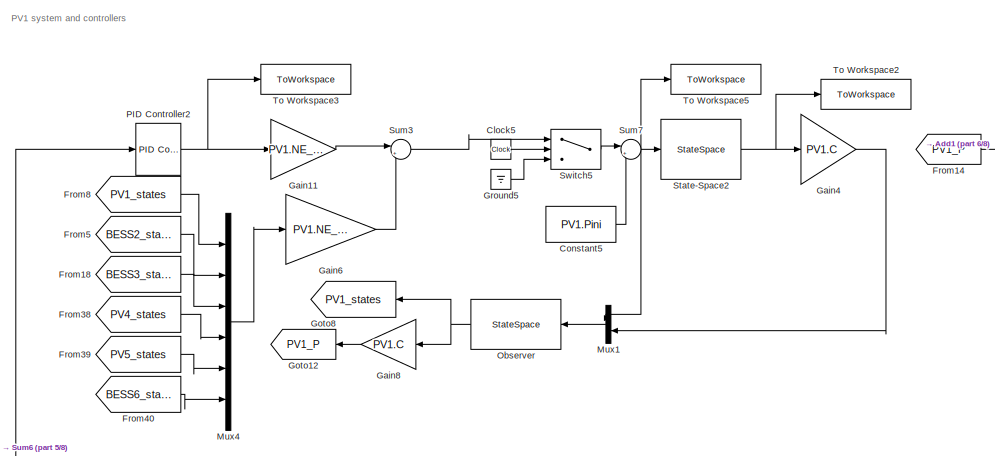
[diagram: root canvas - part 1/8, top center region]
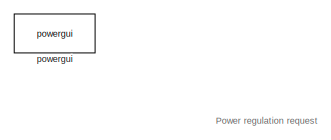
[diagram: root canvas - part 2/8, top left region]
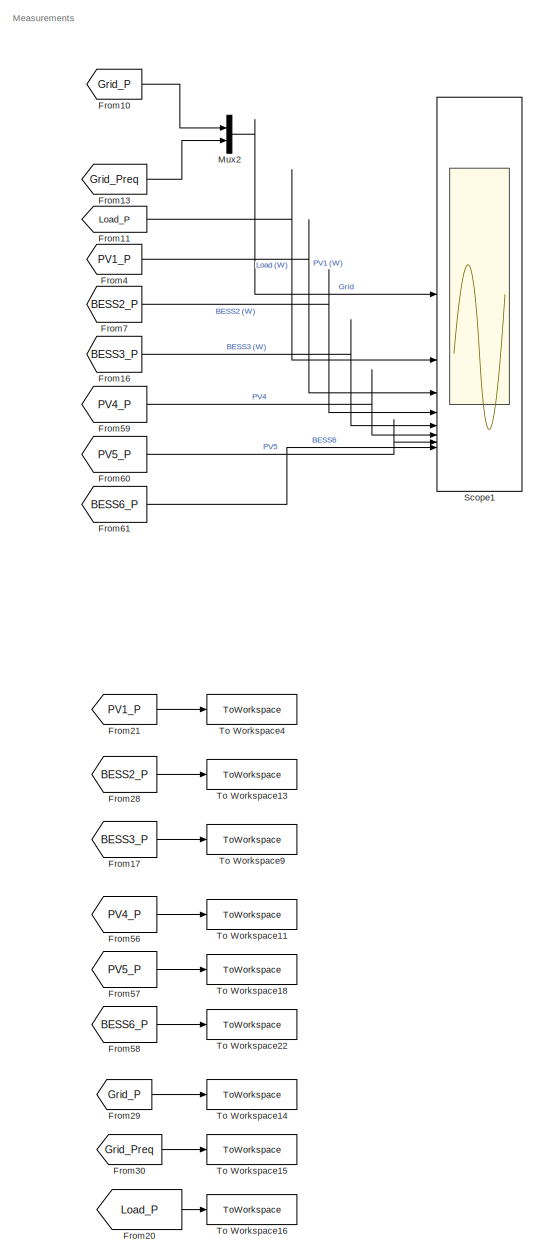
[diagram: root canvas - part 3/8, middle right region]
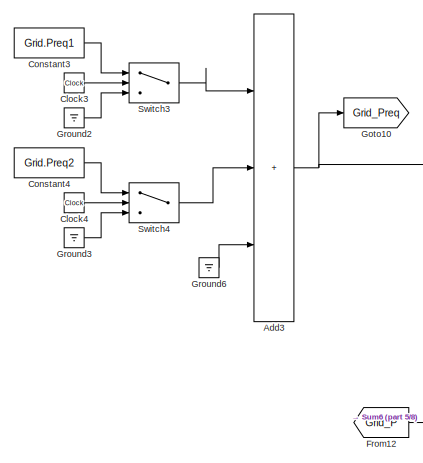
[diagram: root canvas - part 4/8, top left region]
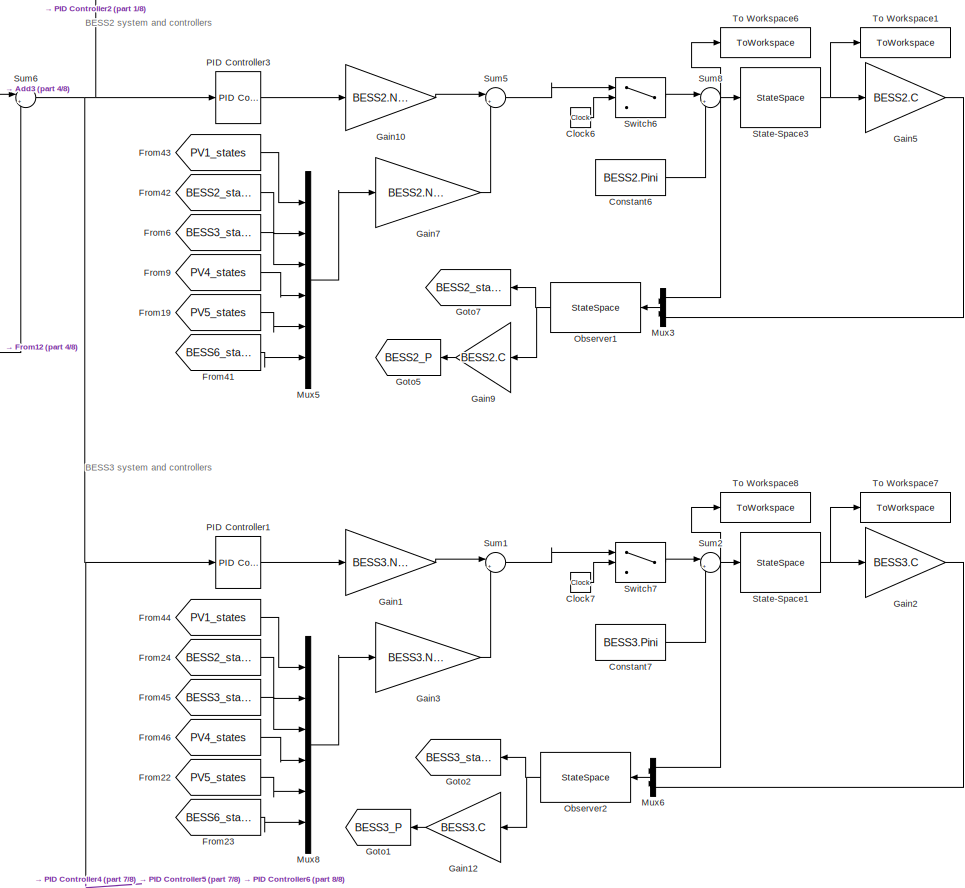
[diagram: root canvas - part 5/8, top left region]
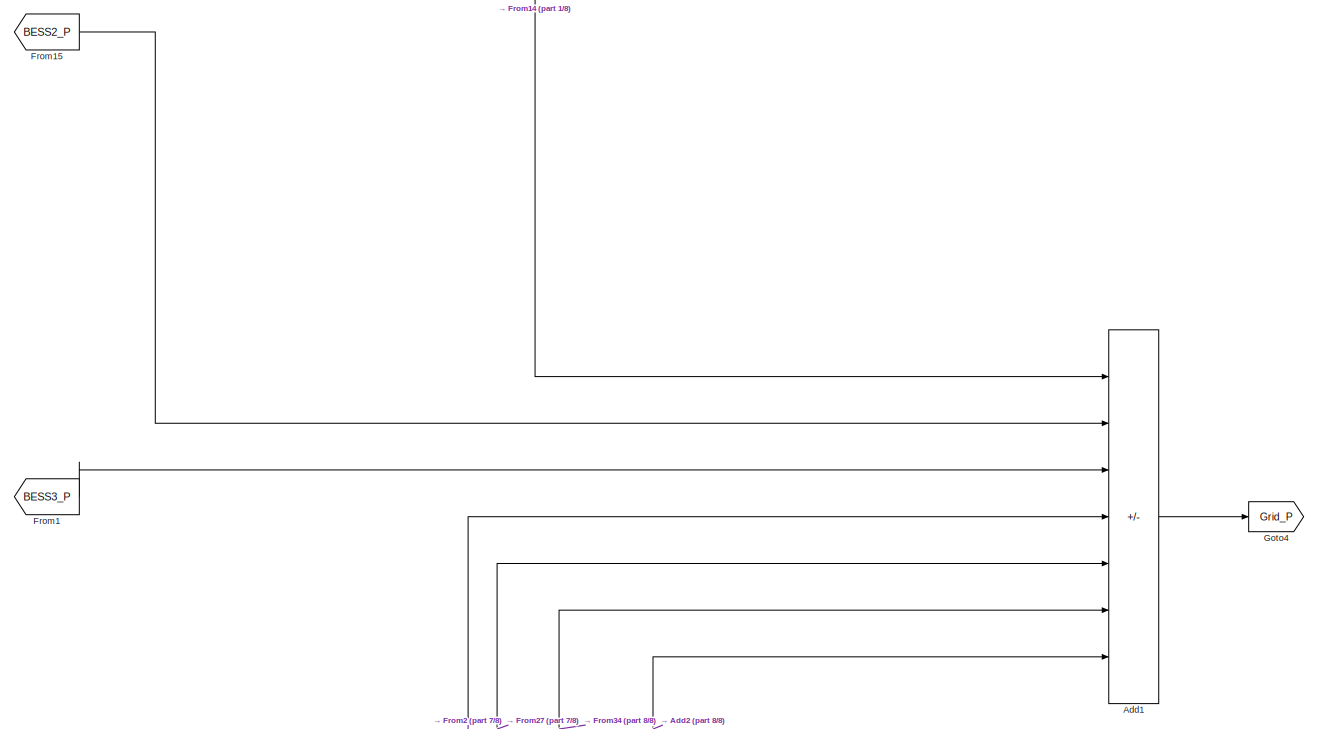
[diagram: root canvas - part 6/8, top center region]
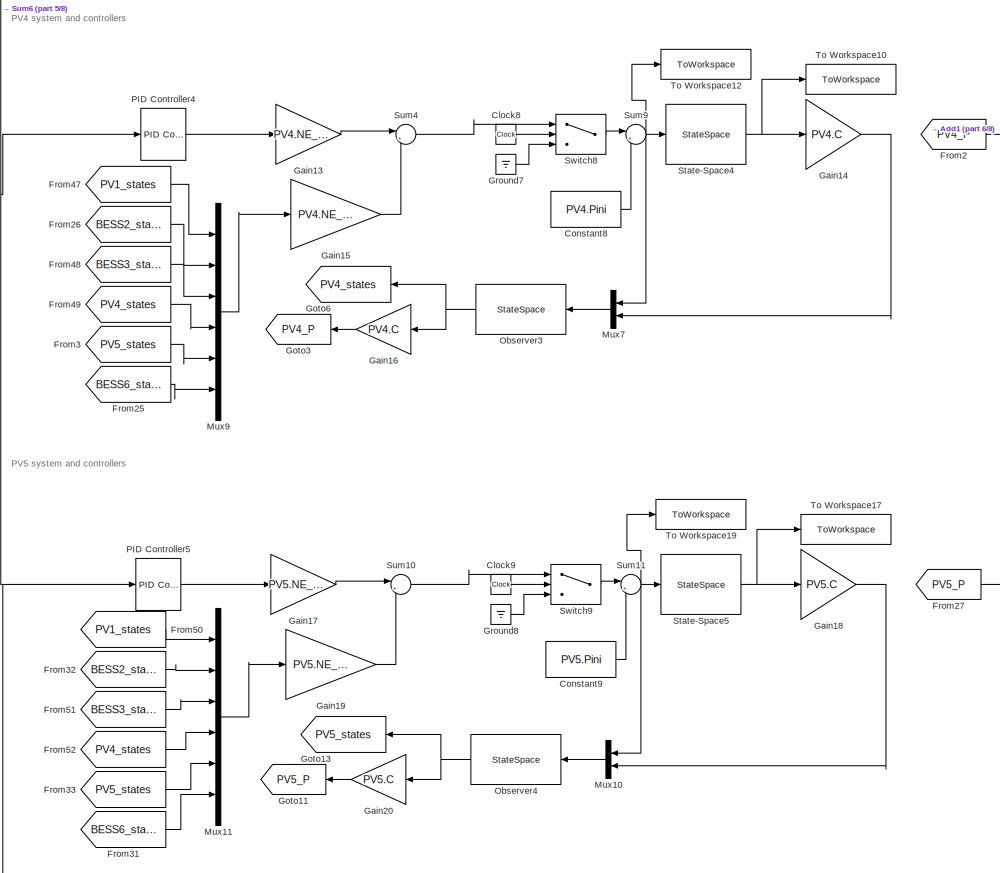
[diagram: root canvas - part 7/8, central region]
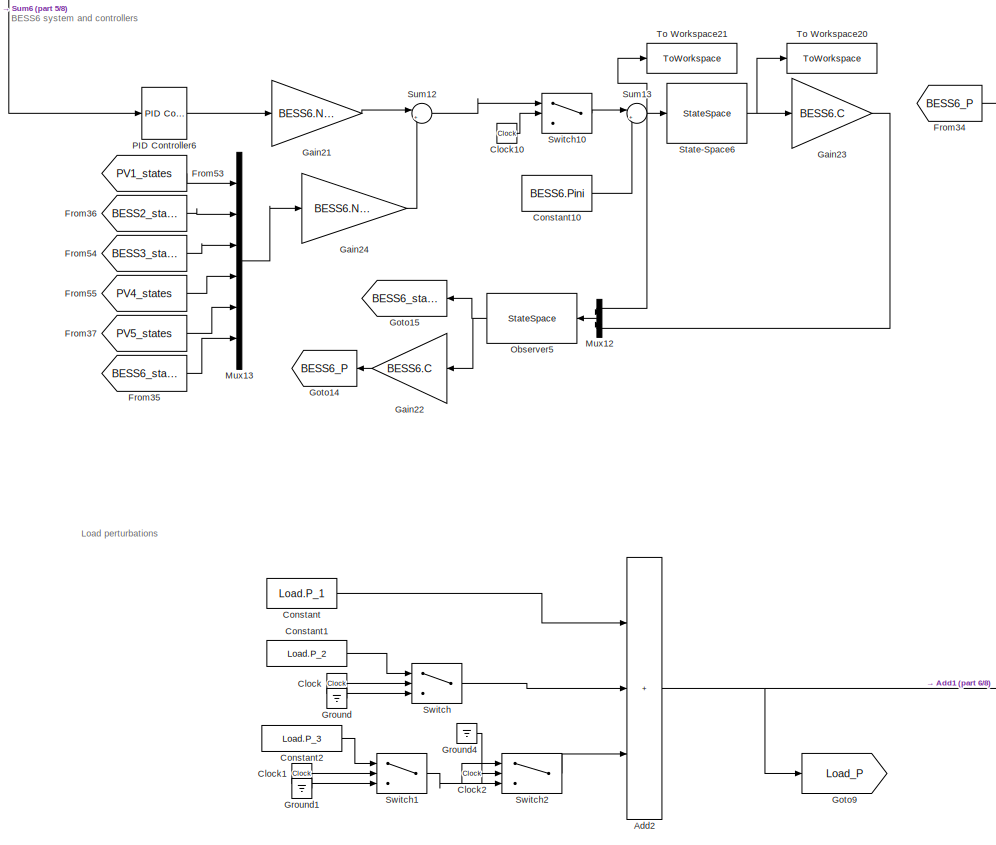
[diagram: root canvas - part 8/8, bottom center region]
MODEL slx_c86b8dcd401f
KIND model
CONFIG AbsTol = auto
CONFIG EnableMultiTasking = off
CONFIG FixedStep = auto
CONFIG MaxStep = auto
CONFIG MinStep = auto
CONFIG RelTol = 1e-3
CONFIG SampleTimeConstraint = Unconstrained
CONFIG SolverName = VariableStepAuto
CONFIG StartTime = 0.0
CONFIG StopTime = 6
BLOCK [Sum] Add1
  IconShape = rectangular
  Inputs = ++++++-
BLOCK [Sum] Add2
  IconShape = rectangular
  Inputs = +++
BLOCK [Sum] Add3
  IconShape = rectangular
  Inputs = +++
BLOCK [Clock] Clock
BLOCK [Clock] Clock1
BLOCK [Clock] Clock10
BLOCK [Clock] Clock2
BLOCK [Clock] Clock3
BLOCK [Clock] Clock4
BLOCK [Clock] Clock5
BLOCK [Clock] Clock6
BLOCK [Clock] Clock7
BLOCK [Clock] Clock8
BLOCK [Clock] Clock9
BLOCK [Constant] Constant
  Value = Load.P_1
BLOCK [Constant] Constant1
  Value = Load.P_2
BLOCK [Constant] Constant10
  Value = BESS6.Pini
BLOCK [Constant] Constant2
  Value = Load.P_3
BLOCK [Constant] Constant3
  Value = Grid.Preq1
BLOCK [Constant] Constant4
  Value = Grid.Preq2
BLOCK [Constant] Constant5
  Value = PV1.Pini
BLOCK [Constant] Constant6
  Value = BESS2.Pini
BLOCK [Constant] Constant7
  Value = BESS3.Pini
BLOCK [Constant] Constant8
  Value = PV4.Pini
BLOCK [Constant] Constant9
  Value = PV5.Pini
BLOCK [From] From1
  GotoTag = BESS3_P
BLOCK [From] From10
  GotoTag = Grid_P
BLOCK [From] From11
  GotoTag = Load_P
BLOCK [From] From12
  GotoTag = Grid_P
BLOCK [From] From13
  GotoTag = Grid_Preq
BLOCK [From] From14
  GotoTag = PV1_P
BLOCK [From] From15
  GotoTag = BESS2_P
BLOCK [From] From16
  GotoTag = BESS3_P
BLOCK [From] From17
  GotoTag = BESS3_P
BLOCK [From] From18
  GotoTag = BESS3_states
BLOCK [From] From19
  GotoTag = PV5_states
BLOCK [From] From2
  GotoTag = PV4_P
BLOCK [From] From20
  GotoTag = Load_P
BLOCK [From] From21
  GotoTag = PV1_P
BLOCK [From] From22
  GotoTag = PV5_states
BLOCK [From] From23
  GotoTag = BESS6_states
BLOCK [From] From24
  GotoTag = BESS2_states
BLOCK [From] From25
  GotoTag = BESS6_states
BLOCK [From] From26
  GotoTag = BESS2_states
BLOCK [From] From27
  GotoTag = PV5_P
BLOCK [From] From28
  GotoTag = BESS2_P
BLOCK [From] From29
  GotoTag = Grid_P
BLOCK [From] From3
  GotoTag = PV5_states
BLOCK [From] From30
  GotoTag = Grid_Preq
BLOCK [From] From31
  GotoTag = BESS6_states
BLOCK [From] From32
  GotoTag = BESS2_states
BLOCK [From] From33
  GotoTag = PV5_states
BLOCK [From] From34
  GotoTag = BESS6_P
BLOCK [From] From35
  GotoTag = BESS6_states
BLOCK [From] From36
  GotoTag = BESS2_states
BLOCK [From] From37
  GotoTag = PV5_states
BLOCK [From] From38
  GotoTag = PV4_states
BLOCK [From] From39
  GotoTag = PV5_states
BLOCK [From] From4
  GotoTag = PV1_P
BLOCK [From] From40
  GotoTag = BESS6_states
BLOCK [From] From41
  GotoTag = BESS6_states
BLOCK [From] From42
  GotoTag = BESS2_states
BLOCK [From] From43
  GotoTag = PV1_states
BLOCK [From] From44
  GotoTag = PV1_states
BLOCK [From] From45
  GotoTag = BESS3_states
BLOCK [From] From46
  GotoTag = PV4_states
BLOCK [From] From47
  GotoTag = PV1_states
BLOCK [From] From48
  GotoTag = BESS3_states
BLOCK [From] From49
  GotoTag = PV4_states
BLOCK [From] From5
  GotoTag = BESS2_states
BLOCK [From] From50
  GotoTag = PV1_states
BLOCK [From] From51
  GotoTag = BESS3_states
BLOCK [From] From52
  GotoTag = PV4_states
BLOCK [From] From53
  GotoTag = PV1_states
BLOCK [From] From54
  GotoTag = BESS3_states
BLOCK [From] From55
  GotoTag = PV4_states
BLOCK [From] From56
  GotoTag = PV4_P
BLOCK [From] From57
  GotoTag = PV5_P
BLOCK [From] From58
  GotoTag = BESS6_P
BLOCK [From] From59
  GotoTag = PV4_P
BLOCK [From] From6
  GotoTag = BESS3_states
BLOCK [From] From60
  GotoTag = PV5_P
BLOCK [From] From61
  GotoTag = BESS6_P
BLOCK [From] From7
  GotoTag = BESS2_P
BLOCK [From] From8
  GotoTag = PV1_states
BLOCK [From] From9
  GotoTag = PV4_states
BLOCK [Gain] Gain1
  Gain = BESS3.NE_ki
BLOCK [Gain] Gain10
  Gain = BESS2.NE_ki
BLOCK [Gain] Gain11
  Gain = PV1.NE_ki
BLOCK [Gain] Gain12
  Gain = BESS3.C
  Multiplication = Matrix(K*u)
BLOCK [Gain] Gain13
  Gain = PV4.NE_ki
BLOCK [Gain] Gain14
  Gain = PV4.C
  Multiplication = Matrix(K*u)
BLOCK [Gain] Gain15
  Gain = PV4.NE_kp
  Multiplication = Matrix(K*u)
BLOCK [Gain] Gain16
  Gain = PV4.C
  Multiplication = Matrix(K*u)
BLOCK [Gain] Gain17
  Gain = PV5.NE_ki
BLOCK [Gain] Gain18
  Gain = PV5.C
  Multiplication = Matrix(K*u)
BLOCK [Gain] Gain19
  Gain = PV5.NE_kp
  Multiplication = Matrix(K*u)
BLOCK [Gain] Gain2
  Gain = BESS3.C
  Multiplication = Matrix(K*u)
BLOCK [Gain] Gain20
  Gain = PV5.C
  Multiplication = Matrix(K*u)
BLOCK [Gain] Gain21
  Gain = BESS6.NE_ki
BLOCK [Gain] Gain22
  Gain = BESS6.C
  Multiplication = Matrix(K*u)
BLOCK [Gain] Gain23
  Gain = BESS6.C
  Multiplication = Matrix(K*u)
BLOCK [Gain] Gain24
  Gain = BESS6.NE_kp
  Multiplication = Matrix(K*u)
BLOCK [Gain] Gain3
  Gain = BESS3.NE_kp
  Multiplication = Matrix(K*u)
BLOCK [Gain] Gain4
  Gain = PV1.C
  Multiplication = Matrix(K*u)
BLOCK [Gain] Gain5
  Gain = BESS2.C
  Multiplication = Matrix(K*u)
BLOCK [Gain] Gain6
  Gain = PV1.NE_kp
  Multiplication = Matrix(K*u)
BLOCK [Gain] Gain7
  Gain = BESS2.NE_kp
  Multiplication = Matrix(K*u)
BLOCK [Gain] Gain8
  Gain = PV1.C
  Multiplication = Matrix(K*u)
BLOCK [Gain] Gain9
  Gain = BESS2.C
  Multiplication = Matrix(K*u)
BLOCK [Goto] Goto1
  GotoTag = BESS3_P
BLOCK [Goto] Goto10
  GotoTag = Grid_Preq
BLOCK [Goto] Goto11
  GotoTag = PV5_P
BLOCK [Goto] Goto12
  GotoTag = PV1_P
BLOCK [Goto] Goto13
  GotoTag = PV5_states
BLOCK [Goto] Goto14
  GotoTag = BESS6_P
BLOCK [Goto] Goto15
  GotoTag = BESS6_states
BLOCK [Goto] Goto2
  GotoTag = BESS3_states
BLOCK [Goto] Goto3
  GotoTag = PV4_P
BLOCK [Goto] Goto4
  GotoTag = Grid_P
BLOCK [Goto] Goto5
  GotoTag = BESS2_P
BLOCK [Goto] Goto6
  GotoTag = PV4_states
BLOCK [Goto] Goto7
  GotoTag = BESS2_states
BLOCK [Goto] Goto8
  GotoTag = PV1_states
BLOCK [Goto] Goto9
  GotoTag = Load_P
BLOCK [Ground] Ground
BLOCK [Ground] Ground1
BLOCK [Ground] Ground2
BLOCK [Ground] Ground3
BLOCK [Ground] Ground4
BLOCK [Ground] Ground5
BLOCK [Ground] Ground6
BLOCK [Ground] Ground7
BLOCK [Ground] Ground8
BLOCK [Mux] Mux1
  DisplayOption = bar
  Inputs = 2
BLOCK [Mux] Mux10
  DisplayOption = bar
  Inputs = 2
BLOCK [Mux] Mux11
  DisplayOption = bar
  Inputs = 6
BLOCK [Mux] Mux12
  DisplayOption = bar
  Inputs = 2
BLOCK [Mux] Mux13
  DisplayOption = bar
  Inputs = 6
BLOCK [Mux] Mux2
  DisplayOption = bar
  Inputs = 2
BLOCK [Mux] Mux3
  DisplayOption = bar
  Inputs = 2
BLOCK [Mux] Mux4
  DisplayOption = bar
  Inputs = 6
BLOCK [Mux] Mux5
  DisplayOption = bar
  Inputs = 6
BLOCK [Mux] Mux6
  DisplayOption = bar
  Inputs = 2
BLOCK [Mux] Mux7
  DisplayOption = bar
  Inputs = 2
BLOCK [Mux] Mux8
  DisplayOption = bar
  Inputs = 6
BLOCK [Mux] Mux9
  DisplayOption = bar
  Inputs = 6
BLOCK [StateSpace] Observer
  A = PV1.kf_As
  B = PV1.kf_Bs
  C = PV1.kf_Cs
  D = PV1.kf_Ds
  InitialCondition = 0
BLOCK [StateSpace] Observer1
  A = BESS2.kf_As
  B = BESS2.kf_Bs
  C = BESS2.kf_Cs
  D = BESS2.kf_Ds
  InitialCondition = 0
BLOCK [StateSpace] Observer2
  A = BESS3.kf_As
  B = BESS3.kf_Bs
  C = BESS3.kf_Cs
  D = BESS3.kf_Ds
  InitialCondition = 0
BLOCK [StateSpace] Observer3
  A = PV4.kf_As
  B = PV4.kf_Bs
  C = PV4.kf_Cs
  D = PV4.kf_Ds
  InitialCondition = 0
BLOCK [StateSpace] Observer4
  A = PV5.kf_As
  B = PV5.kf_Bs
  C = PV5.kf_Cs
  D = PV5.kf_Ds
  InitialCondition = 0
BLOCK [StateSpace] Observer5
  A = BESS6.kf_As
  B = BESS6.kf_Bs
  C = BESS6.kf_Cs
  D = BESS6.kf_Ds
  InitialCondition = 0
BLOCK [Reference] PID Controller1  REF=slpidlib/PID Controller
  LibrarySourceBlock = simulink/Continuous/PID Controller
  SourceBlock = slpidlib/PID Controller
  SourceType = PID 1dof
BLOCK [Reference] PID Controller2  REF=slpidlib/PID Controller
  LibrarySourceBlock = simulink/Continuous/PID Controller
  SourceBlock = slpidlib/PID Controller
  SourceType = PID 1dof
BLOCK [Reference] PID Controller3  REF=slpidlib/PID Controller
  LibrarySourceBlock = simulink/Continuous/PID Controller
  SourceBlock = slpidlib/PID Controller
  SourceType = PID 1dof
BLOCK [Reference] PID Controller4  REF=slpidlib/PID Controller
  LibrarySourceBlock = simulink/Continuous/PID Controller
  SourceBlock = slpidlib/PID Controller
  SourceType = PID 1dof
BLOCK [Reference] PID Controller5  REF=slpidlib/PID Controller
  LibrarySourceBlock = simulink/Continuous/PID Controller
  SourceBlock = slpidlib/PID Controller
  SourceType = PID 1dof
BLOCK [Reference] PID Controller6  REF=slpidlib/PID Controller
  LibrarySourceBlock = simulink/Continuous/PID Controller
  SourceBlock = slpidlib/PID Controller
  SourceType = PID 1dof
BLOCK [Scope] Scope1
  Floating = off
  NumInputPorts = 8
  ScopeSpecificationString = Simulink.scopes.TimeScopeBlockCfg('CurrentConfiguration', extmgr.ConfigurationSet(extmgr.Configuration('Core','General UI',true,'FigureColor',[1 1 1]),extmgr.Configuration('Core','Source UI',true),extmgr.Configuration('Sources','WiredSimulink',true,'DataLoggingVariableName','ScopeData1'),extmgr.Configuration('Visuals','Time Domain',true,'SerializedDisplays',{struct('MinYLimReal','-9250003.42325','...<+8378ch>
BLOCK [StateSpace] State-Space1
  A = BESS3.A
  B = BESS3.B
  C = eye(2,2)
  D = zeros(2,1)
  InitialCondition = 0
BLOCK [StateSpace] State-Space2
  A = PV1.A
  B = PV1.B
  C = eye(2,2)
  D = zeros(2,1)
  InitialCondition = 0
BLOCK [StateSpace] State-Space3
  A = BESS2.A
  B = BESS2.B
  C = eye(2,2)
  D = zeros(2,1)
  InitialCondition = 0
BLOCK [StateSpace] State-Space4
  A = PV4.A
  B = PV4.B
  C = eye(2,2)
  D = zeros(2,1)
  InitialCondition = 0
BLOCK [StateSpace] State-Space5
  A = PV5.A
  B = PV5.B
  C = eye(2,2)
  D = zeros(2,1)
  InitialCondition = 0
BLOCK [StateSpace] State-Space6
  A = BESS6.A
  B = BESS6.B
  C = eye(2,2)
  D = zeros(2,1)
  InitialCondition = 0
BLOCK [Sum] Sum1
  Inputs = |++
BLOCK [Sum] Sum10
  Inputs = |++
BLOCK [Sum] Sum11
  Inputs = |++
BLOCK [Sum] Sum12
  Inputs = |++
BLOCK [Sum] Sum13
  Inputs = |++
BLOCK [Sum] Sum2
  Inputs = |++
BLOCK [Sum] Sum3
  Inputs = |++
BLOCK [Sum] Sum4
  Inputs = |++
BLOCK [Sum] Sum5
  Inputs = |++
BLOCK [Sum] Sum6
  Inputs = |+-
BLOCK [Sum] Sum7
  Inputs = |++
BLOCK [Sum] Sum8
  Inputs = |++
BLOCK [Sum] Sum9
  Inputs = |++
BLOCK [Switch] Switch
  InputSameDT = off
  SaturateOnIntegerOverflow = off
  Threshold = Load.sw2_closed
BLOCK [Switch] Switch1
  InputSameDT = off
  SaturateOnIntegerOverflow = off
  Threshold = Load.sw3_closed
BLOCK [Switch] Switch10
  InputSameDT = off
  SaturateOnIntegerOverflow = off
  Threshold = Grid.Time1
BLOCK [Switch] Switch2
  InputSameDT = off
  SaturateOnIntegerOverflow = off
  Threshold = Load.sw3_open
BLOCK [Switch] Switch3
  InputSameDT = off
  SaturateOnIntegerOverflow = off
  Threshold = Grid.Time1-0.001
BLOCK [Switch] Switch4
  InputSameDT = off
  SaturateOnIntegerOverflow = off
  Threshold = Grid.Time2
BLOCK [Switch] Switch5
  InputSameDT = off
  SaturateOnIntegerOverflow = off
  Threshold = Grid.Time1
BLOCK [Switch] Switch6
  InputSameDT = off
  SaturateOnIntegerOverflow = off
  Threshold = Grid.Time1
BLOCK [Switch] Switch7
  InputSameDT = off
  SaturateOnIntegerOverflow = off
  Threshold = Grid.Time1
BLOCK [Switch] Switch8
  InputSameDT = off
  SaturateOnIntegerOverflow = off
  Threshold = Grid.Time1
BLOCK [Switch] Switch9
  InputSameDT = off
  SaturateOnIntegerOverflow = off
  Threshold = Grid.Time1
BLOCK [ToWorkspace] To Workspace1
  FixptAsFi = on
  MaxDataPoints = inf
  SampleTime = Ts
  SaveFormat = Timeseries
  VariableName = x_bess2
BLOCK [ToWorkspace] To Workspace10
  FixptAsFi = on
  MaxDataPoints = inf
  SampleTime = Ts
  SaveFormat = Timeseries
  VariableName = x_pv4
BLOCK [ToWorkspace] To Workspace11
  FixptAsFi = on
  MaxDataPoints = inf
  SampleTime = Ts
  SaveFormat = Timeseries
  VariableName = PV4_P
BLOCK [ToWorkspace] To Workspace12
  FixptAsFi = on
  MaxDataPoints = inf
  SampleTime = Ts
  SaveFormat = Timeseries
  VariableName = u_pv4
BLOCK [ToWorkspace] To Workspace13
  FixptAsFi = on
  MaxDataPoints = inf
  SampleTime = Ts
  SaveFormat = Timeseries
  VariableName = BESS2_P
BLOCK [ToWorkspace] To Workspace14
  FixptAsFi = on
  MaxDataPoints = inf
  SampleTime = Ts
  SaveFormat = Timeseries
  VariableName = Grid_P
BLOCK [ToWorkspace] To Workspace15
  FixptAsFi = on
  MaxDataPoints = inf
  SampleTime = Ts
  SaveFormat = Timeseries
  VariableName = Grid_Preq
BLOCK [ToWorkspace] To Workspace16
  FixptAsFi = on
  MaxDataPoints = inf
  SampleTime = Ts
  SaveFormat = Timeseries
  VariableName = Load_P
BLOCK [ToWorkspace] To Workspace17
  FixptAsFi = on
  MaxDataPoints = inf
  SampleTime = Ts
  SaveFormat = Timeseries
  VariableName = x_pv5
BLOCK [ToWorkspace] To Workspace18
  FixptAsFi = on
  MaxDataPoints = inf
  SampleTime = Ts
  SaveFormat = Timeseries
  VariableName = PV5_P
BLOCK [ToWorkspace] To Workspace19
  FixptAsFi = on
  MaxDataPoints = inf
  SampleTime = Ts
  SaveFormat = Timeseries
  VariableName = u_pv5
BLOCK [ToWorkspace] To Workspace2
  FixptAsFi = on
  MaxDataPoints = inf
  SampleTime = Ts
  SaveFormat = Timeseries
  VariableName = x_pv1
BLOCK [ToWorkspace] To Workspace20
  FixptAsFi = on
  MaxDataPoints = inf
  SampleTime = Ts
  SaveFormat = Timeseries
  VariableName = x_bess6
BLOCK [ToWorkspace] To Workspace21
  FixptAsFi = on
  MaxDataPoints = inf
  SampleTime = Ts
  SaveFormat = Timeseries
  VariableName = u_bess6
BLOCK [ToWorkspace] To Workspace22
  FixptAsFi = on
  MaxDataPoints = inf
  SampleTime = Ts
  SaveFormat = Timeseries
  VariableName = BESS6_P
BLOCK [ToWorkspace] To Workspace3
  FixptAsFi = on
  MaxDataPoints = inf
  SampleTime = Ts
  SaveFormat = Timeseries
  VariableName = w
BLOCK [ToWorkspace] To Workspace4
  FixptAsFi = on
  MaxDataPoints = inf
  SampleTime = Ts
  SaveFormat = Timeseries
  VariableName = PV1_P
BLOCK [ToWorkspace] To Workspace5
  FixptAsFi = on
  MaxDataPoints = inf
  SampleTime = Ts
  SaveFormat = Timeseries
  VariableName = u_pv1
BLOCK [ToWorkspace] To Workspace6
  FixptAsFi = on
  MaxDataPoints = inf
  SampleTime = Ts
  SaveFormat = Timeseries
  VariableName = u_bess2
BLOCK [ToWorkspace] To Workspace7
  FixptAsFi = on
  MaxDataPoints = inf
  SampleTime = Ts
  SaveFormat = Timeseries
  VariableName = x_bess3
BLOCK [ToWorkspace] To Workspace8
  FixptAsFi = on
  MaxDataPoints = inf
  SampleTime = Ts
  SaveFormat = Timeseries
  VariableName = u_bess3
BLOCK [ToWorkspace] To Workspace9
  FixptAsFi = on
  MaxDataPoints = inf
  SampleTime = Ts
  SaveFormat = Timeseries
  VariableName = BESS3_P
BLOCK [Reference] powergui  REF=spspowerguiLib/powergui
  LibrarySourceBlock = sps_lib/powergui
  Priority = 1
  SourceBlock = spspowerguiLib/powergui
  SourceType = PSB option menu block
ANNOTATION (root): BESS2 system and controllers
ANNOTATION (root): BESS3 system and controllers
ANNOTATION (root): BESS6 system and controllers
ANNOTATION (root): Load perturbations
ANNOTATION (root): Measurements
ANNOTATION (root): PV1 system and controllers
ANNOTATION (root): PV4 system and controllers
ANNOTATION (root): PV5 system and controllers
ANNOTATION (root): Power regulation request
LINE Add1:1 -> Goto4:1
NET Add2:1 -> Add1:7, Goto9:1
NET Add3:1 -> Goto10:1, Sum6:1
LINE Clock10:1 -> Switch10:2
LINE Clock1:1 -> Switch1:2
LINE Clock2:1 -> Switch2:2
LINE Clock3:1 -> Switch3:2
LINE Clock4:1 -> Switch4:2
LINE Clock5:1 -> Switch5:2
LINE Clock6:1 -> Switch6:2
LINE Clock7:1 -> Switch7:2
LINE Clock8:1 -> Switch8:2
LINE Clock9:1 -> Switch9:2
LINE Clock:1 -> Switch:2
LINE Constant10:1 -> Sum13:2
LINE Constant1:1 -> Switch:1
LINE Constant2:1 -> Switch1:1
LINE Constant3:1 -> Switch3:1
LINE Constant4:1 -> Switch4:1
LINE Constant5:1 -> Sum7:2
LINE Constant6:1 -> Sum8:2
LINE Constant7:1 -> Sum2:2
LINE Constant8:1 -> Sum9:2
LINE Constant9:1 -> Sum11:2
LINE Constant:1 -> Add2:1
LINE From10:1 -> Mux2:1
LINE From11:1 -> Scope1:2
LINE From12:1 -> Sum6:2
LINE From13:1 -> Mux2:2
LINE From14:1 -> Add1:1
LINE From15:1 -> Add1:2
LINE From16:1 -> Scope1:5
LINE From17:1 -> To Workspace9:1
LINE From18:1 -> Mux4:3
LINE From19:1 -> Mux5:5
LINE From1:1 -> Add1:3
LINE From20:1 -> To Workspace16:1
LINE From21:1 -> To Workspace4:1
LINE From22:1 -> Mux8:5
LINE From23:1 -> Mux8:6
LINE From24:1 -> Mux8:2
LINE From25:1 -> Mux9:6
LINE From26:1 -> Mux9:2
LINE From27:1 -> Add1:5
LINE From28:1 -> To Workspace13:1
LINE From29:1 -> To Workspace14:1
LINE From2:1 -> Add1:4
LINE From30:1 -> To Workspace15:1
LINE From31:1 -> Mux11:6
LINE From32:1 -> Mux11:2
LINE From33:1 -> Mux11:5
LINE From34:1 -> Add1:6
LINE From35:1 -> Mux13:6
LINE From36:1 -> Mux13:2
LINE From37:1 -> Mux13:5
LINE From38:1 -> Mux4:4
LINE From39:1 -> Mux4:5
LINE From3:1 -> Mux9:5
LINE From40:1 -> Mux4:6
LINE From41:1 -> Mux5:6
LINE From42:1 -> Mux5:2
LINE From43:1 -> Mux5:1
LINE From44:1 -> Mux8:1
LINE From45:1 -> Mux8:3
LINE From46:1 -> Mux8:4
LINE From47:1 -> Mux9:1
LINE From48:1 -> Mux9:3
LINE From49:1 -> Mux9:4
LINE From4:1 -> Scope1:3
LINE From50:1 -> Mux11:1
LINE From51:1 -> Mux11:3
LINE From52:1 -> Mux11:4
LINE From53:1 -> Mux13:1
LINE From54:1 -> Mux13:3
LINE From55:1 -> Mux13:4
LINE From56:1 -> To Workspace11:1
LINE From57:1 -> To Workspace18:1
LINE From58:1 -> To Workspace22:1
LINE From59:1 -> Scope1:6
LINE From5:1 -> Mux4:2
LINE From60:1 -> Scope1:7
LINE From61:1 -> Scope1:8
LINE From6:1 -> Mux5:3
LINE From7:1 -> Scope1:4
LINE From8:1 -> Mux4:1
LINE From9:1 -> Mux5:4
LINE Gain10:1 -> Sum5:1
LINE Gain11:1 -> Sum3:1
LINE Gain12:1 -> Goto1:1
LINE Gain13:1 -> Sum4:1
LINE Gain14:1 -> Mux7:2
LINE Gain15:1 -> Sum4:2
LINE Gain16:1 -> Goto3:1
LINE Gain17:1 -> Sum10:1
LINE Gain18:1 -> Mux10:2
LINE Gain19:1 -> Sum10:2
LINE Gain1:1 -> Sum1:1
LINE Gain20:1 -> Goto11:1
LINE Gain21:1 -> Sum12:1
LINE Gain22:1 -> Goto14:1
LINE Gain23:1 -> Mux12:2
LINE Gain24:1 -> Sum12:2
LINE Gain2:1 -> Mux6:2
LINE Gain3:1 -> Sum1:2
LINE Gain4:1 -> Mux1:2
LINE Gain5:1 -> Mux3:2
LINE Gain6:1 -> Sum3:2
LINE Gain7:1 -> Sum5:2
LINE Gain8:1 -> Goto12:1
LINE Gain9:1 -> Goto5:1
LINE Ground1:1 -> Switch1:3
LINE Ground2:1 -> Switch3:3
LINE Ground3:1 -> Switch4:3
LINE Ground4:1 -> Switch2:1
LINE Ground5:1 -> Switch5:3
LINE Ground6:1 -> Add3:3
LINE Ground7:1 -> Switch8:3
LINE Ground8:1 -> Switch9:3
LINE Ground:1 -> Switch:3
LINE Mux10:1 -> Observer4:1
LINE Mux11:1 -> Gain19:1
LINE Mux12:1 -> Observer5:1
LINE Mux13:1 -> Gain24:1
LINE Mux1:1 -> Observer:1
LINE Mux2:1 -> Scope1:1
LINE Mux3:1 -> Observer1:1
LINE Mux4:1 -> Gain6:1
LINE Mux5:1 -> Gain7:1
LINE Mux6:1 -> Observer2:1
LINE Mux7:1 -> Observer3:1
LINE Mux8:1 -> Gain3:1
LINE Mux9:1 -> Gain15:1
NET Observer1:1 -> Gain9:1, Goto7:1
NET Observer2:1 -> Gain12:1, Goto2:1
NET Observer3:1 -> Gain16:1, Goto6:1
NET Observer4:1 -> Gain20:1, Goto13:1
NET Observer5:1 -> Gain22:1, Goto15:1
NET Observer:1 -> Gain8:1, Goto8:1
LINE PID Controller1:1 -> Gain1:1
NET PID Controller2:1 -> Gain11:1, To Workspace3:1
LINE PID Controller3:1 -> Gain10:1
LINE PID Controller4:1 -> Gain13:1
LINE PID Controller5:1 -> Gain17:1
LINE PID Controller6:1 -> Gain21:1
NET State-Space1:1 -> Gain2:1, To Workspace7:1
NET State-Space2:1 -> Gain4:1, To Workspace2:1
NET State-Space3:1 -> Gain5:1, To Workspace1:1
NET State-Space4:1 -> Gain14:1, To Workspace10:1
NET State-Space5:1 -> Gain18:1, To Workspace17:1
NET State-Space6:1 -> Gain23:1, To Workspace20:1
LINE Sum10:1 -> Switch9:1
NET Sum11:1 -> Mux10:1, State-Space5:1, To Workspace19:1
LINE Sum12:1 -> Switch10:1
NET Sum13:1 -> Mux12:1, State-Space6:1, To Workspace21:1
LINE Sum1:1 -> Switch7:1
NET Sum2:1 -> Mux6:1, State-Space1:1, To Workspace8:1
LINE Sum3:1 -> Switch5:1
LINE Sum4:1 -> Switch8:1
LINE Sum5:1 -> Switch6:1
NET Sum6:1 -> PID Controller1:1, PID Controller2:1, PID Controller3:1, PID Controller4:1, PID Controller5:1, PID Controller6:1
NET Sum7:1 -> Mux1:1, State-Space2:1, To Workspace5:1
NET Sum8:1 -> Mux3:1, State-Space3:1, To Workspace6:1
NET Sum9:1 -> Mux7:1, State-Space4:1, To Workspace12:1
LINE Switch10:1 -> Sum13:1
LINE Switch1:1 -> Switch2:3
LINE Switch2:1 -> Add2:3
LINE Switch3:1 -> Add3:1
LINE Switch4:1 -> Add3:2
LINE Switch5:1 -> Sum7:1
LINE Switch6:1 -> Sum8:1
LINE Switch7:1 -> Sum2:1
LINE Switch8:1 -> Sum9:1
LINE Switch9:1 -> Sum11:1
LINE Switch:1 -> Add2:2
note: NET lines group one-source signal fan-out (src -> all destinations, sorted); 1:1 wires keep LINE
